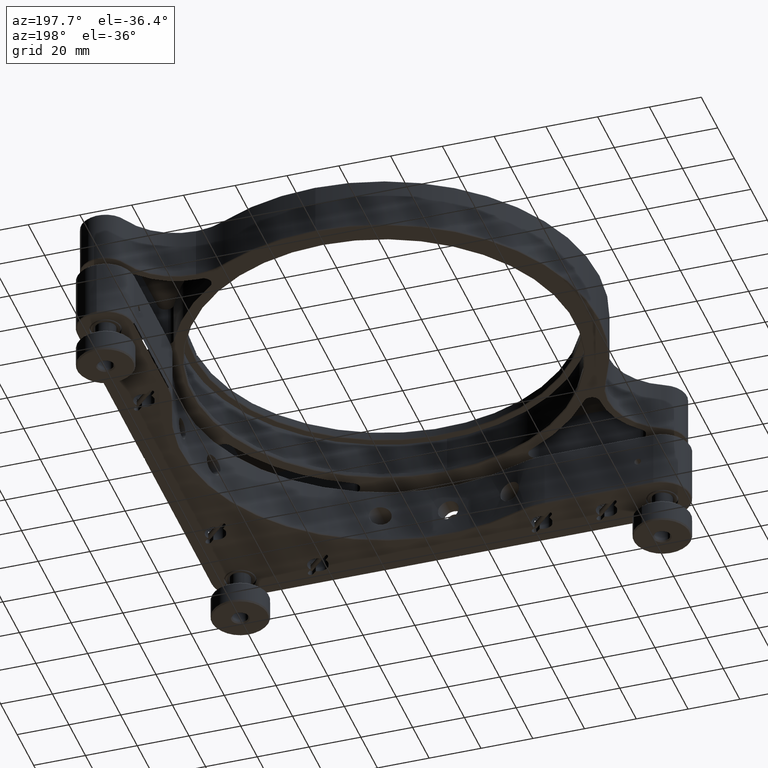
[diagram: clean part render]
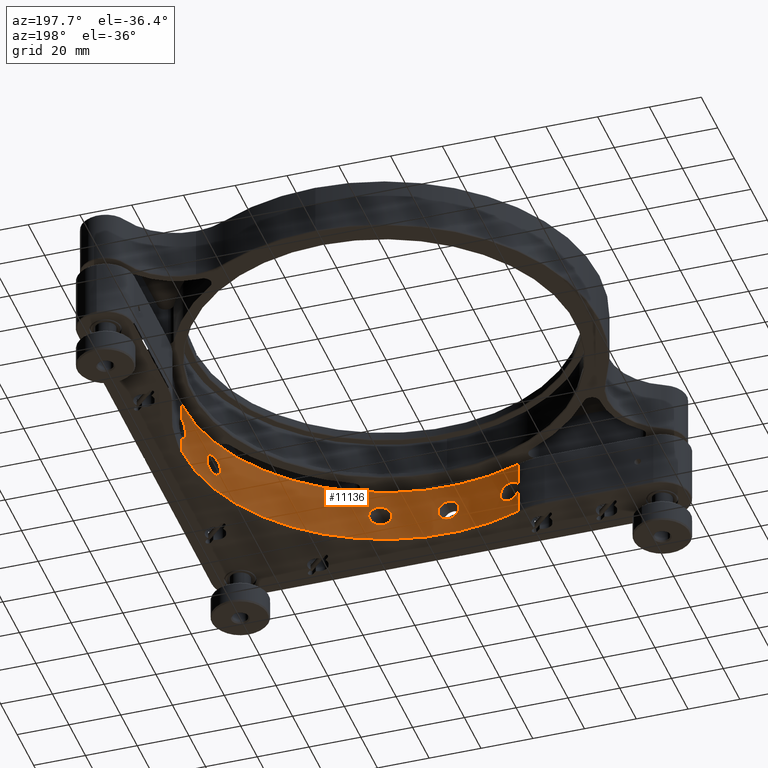
[diagram: same view with one face highlighted and labeled with its STEP entity id]
A machine part, auxiliary view. The second image highlights one B-rep face of the part: STEP entity #11136.
In plain terms, the highlighted cylindrical surface (partial cylindrical patch) has radius 78 mm, axis along (-0, -0, 1).
Its self-contained STEP definition (entity closure, byte-faithful):
#30 = CARTESIAN_POINT ( 'NONE',  ( -27.37100379551196738, -73.04006604625685384, -3.226725056732791863 ) ) ;
#40 = CARTESIAN_POINT ( 'NONE',  ( 74.65602845485361172, -22.59489988606503630, 3.206778632898348746 ) ) ;
#104 = CARTESIAN_POINT ( 'NONE',  ( 26.73848758430381878, -73.27425581765598395, 3.611485316196477058 ) ) ;
#110 = CARTESIAN_POINT ( 'NONE',  ( -28.04488079413580337, -72.78394630786631581, 2.600501206860420744 ) ) ;
#133 = CARTESIAN_POINT ( 'NONE',  ( -24.99999999999999289, -73.88504584826351618, -3.999999999999991562 ) ) ;
#146 = B_SPLINE_CURVE_WITH_KNOTS ( 'NONE', 3,
 ( #10572, #18296, #3316, #17197, #12477, #9824, #7940, #4917, #9457, #12940, #18590, #3419, #10963, #14550, #6326, #16995, #5285, #17100, #6995, #17657, #18493, #16051, #3880, #18693, #14084, #15954, #275, #15491, #19162, #14652, #4714, #10028, #16156, #8512 ),
 .UNSPECIFIED., .F., .F.,
 ( 4, 2, 2, 2, 2, 2, 2, 2, 2, 2, 2, 2, 2, 2, 2, 2, 4 ),
 ( 4.395466612126818234E-20, 0.0007817422773618290174, 0.001563484554723658469, 0.002345226832085487052, 0.003126969109447316070, 0.003908711386809145087, 0.004690453664170974105, 0.005472195941532803122, 0.006253938218894632139, 0.007035680496256461157, 0.007817422773618290174, 0.008599165050980118324, 0.009380907328341948209, 0.01016264960570377809, 0.01094439188306560624, 0.01172613416042743439, 0.01250787643778926428 ),
 .UNSPECIFIED. ) ;
#182 = CARTESIAN_POINT ( 'NONE',  ( 78.00000000000000000, 0.000000000000000000, -11.00000000000000000 ) ) ;
#275 = CARTESIAN_POINT ( 'NONE',  ( 77.96212707202002434, -2.440020888850041647, -3.180282821266665394 ) ) ;
#332 = CARTESIAN_POINT ( 'NONE',  ( 74.22539789437419699, -23.97579238673047186, 3.900471655276448235 ) ) ;
#370 = ORIENTED_EDGE ( 'NONE', *, *, #10732, .T. ) ;
#449 = CARTESIAN_POINT ( 'NONE',  ( 7.155299446963895485E-15, -78.00000000000000000, 3.999999999999994227 ) ) ;
#462 = CARTESIAN_POINT ( 'NONE',  ( 24.74383873331732531, -73.97172146162401418, 3.999999999999998224 ) ) ;
#496 = CARTESIAN_POINT ( 'NONE',  ( -22.59489988606504696, -74.65602845485361172, 3.206778632898351411 ) ) ;
#655 = CARTESIAN_POINT ( 'NONE',  ( 23.74441657809158102, -74.29849114166836443, 3.806599779784482163 ) ) ;
#661 = CARTESIAN_POINT ( 'NONE',  ( 72.74651131137534321, -28.14197555900623726, 2.489396057008533614 ) ) ;
#696 = CARTESIAN_POINT ( 'NONE',  ( -23.74426298476861419, -74.29853247817516149, -3.806385302535674420 ) ) ;
#760 = ORIENTED_EDGE ( 'NONE', *, *, #18735, .T. ) ;
#852 = CARTESIAN_POINT ( 'NONE',  ( -1.038872687293755481, -77.99350259600736024, -3.871570120535715365 ) ) ;
#870 = CARTESIAN_POINT ( 'NONE',  ( 73.79765663695931721, -25.25827023535409310, 3.999999999999999112 ) ) ;
#954 = B_SPLINE_CURVE_WITH_KNOTS ( 'NONE', 3,
 ( #8115, #462, #9832, #18969, #655, #5197, #12759, #18868, #5097, #11237, #9737, #15869, #2083, #12854, #8216, #11334, #3691, #9931, #15963, #2181, #14463, #12952, #19070, #5295, #11441, #3786, #13563, #16578, #6271, #4388, #15063, #8829, #1075, #7421 ),
 .UNSPECIFIED., .F., .F.,
 ( 4, 2, 2, 2, 2, 2, 2, 2, 2, 2, 2, 2, 2, 2, 2, 2, 4 ),
 ( 0.000000000000000000, 0.0008000817148278636893, 0.001600163429655727379, 0.002400245144483590960, 0.003200326859311454757, 0.004000408574139318121, 0.004800490288967181919, 0.005600572003795045717, 0.006400653718622909515, 0.007200735433450773312, 0.008000817148278636243, 0.008800898863106500908, 0.009600980577934363838, 0.01040106229276222850, 0.01120114400759009143, 0.01200122572241795610, 0.01280130743724581903 ),
 .UNSPECIFIED. ) ;
#1075 = CARTESIAN_POINT ( 'NONE',  ( 24.74681311060530575, -73.97071504102366646, -3.999999999999992450 ) ) ;
#1425 = ORIENTED_EDGE ( 'NONE', *, *, #14524, .T. ) ;
#1439 = CARTESIAN_POINT ( 'NONE',  ( -26.24349648675795876, -73.45279411502990285, 3.806088811528975047 ) ) ;
#1500 = CARTESIAN_POINT ( 'NONE',  ( 7.155299446963895485E-15, -78.00000000000000000, 3.999999999999994227 ) ) ;
#1524 = CARTESIAN_POINT ( 'NONE',  ( 27.59838257292567576, -72.95456708676626079, -3.052121627771050782 ) ) ;
#1558 = CARTESIAN_POINT ( 'NONE',  ( 75.11213550657788574, -21.02784402710324230, -0.5418916867587196817 ) ) ;
#1600 = CARTESIAN_POINT ( 'NONE',  ( 73.88504584826351618, -24.99999999999998224, 3.999999999999998224 ) ) ;
#1622 = CARTESIAN_POINT ( 'NONE',  ( 27.97727728600435881, -72.81010737200010396, 2.683933090833489299 ) ) ;
#1681 = CARTESIAN_POINT ( 'NONE',  ( -1.035576530980339527, -77.99354430105370284, 3.872406130247565859 ) ) ;
#1697 = CARTESIAN_POINT ( 'NONE',  ( 1.294182821932950755, -77.98963379206509217, 3.793803601313259666 ) ) ;
#1801 = CARTESIAN_POINT ( 'NONE',  ( 1.288927170577639503, -77.98972126068761668, -3.795592560333966414 ) ) ;
#1845 = CARTESIAN_POINT ( 'NONE',  ( -26.24400230785020938, -73.45261133346669169, -3.805886250388128111 ) ) ;
#1853 = CARTESIAN_POINT ( 'NONE',  ( 74.29853247817517570, -23.74426298476860353, -3.806385302535675308 ) ) ;
#1893 = CARTESIAN_POINT ( 'NONE',  ( 3.473315906907515682, -77.92276364577965353, 2.001070837446798034 ) ) ;
#2018 = CARTESIAN_POINT ( 'NONE',  ( -22.01723765412725697, -74.82833316180936833, 2.678010543228571905 ) ) ;
#2070 = CARTESIAN_POINT ( 'NONE',  ( -3.595964814120648168, -77.91712968579540188, -1.771362540339814551 ) ) ;
#2083 = CARTESIAN_POINT ( 'NONE',  ( 21.42285956289949311, -75.00048500386762385, 1.809568649512607319 ) ) ;
#2165 = CARTESIAN_POINT ( 'NONE',  ( -1.774081866758450809, -77.98019828597287528, 3.594632870111592382 ) ) ;
#2181 = CARTESIAN_POINT ( 'NONE',  ( 21.13342176601295819, -75.08249837524934378, -1.059061465847109362 ) ) ;
#2188 = CARTESIAN_POINT ( 'NONE',  ( 72.49436141480457252, -28.78506956844345410, -1.320853124984288529 ) ) ;
#2224 = CARTESIAN_POINT ( 'NONE',  ( -23.97579238673048607, -74.22539789437421121, 3.900471655276450456 ) ) ;
#2262 = LINE ( 'NONE', #5074, #9951 ) ;
#2377 = CARTESIAN_POINT ( 'NONE',  ( -3.795060588815405644, -77.90768565280973235, 1.290500745165017893 ) ) ;
#2399 = CARTESIAN_POINT ( 'NONE',  ( 72.57865478690735017, -28.57186707354512833, 1.820078764585681741 ) ) ;
#2400 = LINE ( 'NONE', #14769, #17798 ) ;
#2596 = AXIS2_PLACEMENT_3D ( 'NONE', #3502, #9643, #15875 ) ;
#2738 = EDGE_CURVE ( 'NONE', #5035, #3203, #7978, .T. ) ;
#2849 = CARTESIAN_POINT ( 'NONE',  ( 28.86226829308759534, -72.46359727300362863, -1.074935172876776646 ) ) ;
#2945 = VERTEX_POINT ( 'NONE', #9013 ) ;
#2952 = CARTESIAN_POINT ( 'NONE',  ( 28.97326224857740939, -72.41928881743221780, 0.5340880885660398425 ) ) ;
#3021 = CARTESIAN_POINT ( 'NONE',  ( 3.596047641995421706, -77.91712599941870110, 1.771246890564260434 ) ) ;
#3050 = CARTESIAN_POINT ( 'NONE',  ( 28.97154074426632420, -72.41997851193785607, -0.5472349680986610121 ) ) ;
#3119 = ORIENTED_EDGE ( 'NONE', *, *, #16559, .T. ) ;
#3143 = CARTESIAN_POINT ( 'NONE',  ( 26.25952512777345760, -73.44726336037290082, -3.805068704595564899 ) ) ;
#3149 = CARTESIAN_POINT ( 'NONE',  ( -27.79308834379566662, -72.88046665065765239, 2.869244339740403049 ) ) ;
#3169 = CARTESIAN_POINT ( 'NONE',  ( -25.36021007313602027, -73.76316392039825587, -3.999999999999991562 ) ) ;
#3195 = CARTESIAN_POINT ( 'NONE',  ( -0.5242454980882038651, -77.99865728363330675, 3.974055189202895466 ) ) ;
#3203 = VERTEX_POINT ( 'NONE', #9701 ) ;
#3213 = CARTESIAN_POINT ( 'NONE',  ( 1.775288987563180765, -77.98016566542831640, 3.593912068006213545 ) ) ;
#3313 = CARTESIAN_POINT ( 'NONE',  ( 1.036150386370847443, -77.99354383681649949, -3.872401020321700749 ) ) ;
#3316 = CARTESIAN_POINT ( 'NONE',  ( 77.99865728363330675, -0.5242454980881883220, 3.974055189202895466 ) ) ;
#3365 = CARTESIAN_POINT ( 'NONE',  ( -26.74740889898077612, -73.27078245194927320, -3.602707014048464274 ) ) ;
#3375 = CARTESIAN_POINT ( 'NONE',  ( 74.05445350753896605, -24.49505236323060942, -3.976217016987804165 ) ) ;
#3419 = CARTESIAN_POINT ( 'NONE',  ( 77.92285252867712586, -3.471378386552571804, 2.004674185169120992 ) ) ;
#3502 = CARTESIAN_POINT ( 'NONE',  ( 0.000000000000000000, 0.000000000000000000, 10.70000000000000462 ) ) ;
#3533 = CARTESIAN_POINT ( 'NONE',  ( -24.74701612107662285, -73.97064634969750330, -3.999999999999993339 ) ) ;
#3626 = CARTESIAN_POINT ( 'NONE',  ( -22.02454828541328169, -74.82618024345492813, -2.685998030945659032 ) ) ;
#3691 = CARTESIAN_POINT ( 'NONE',  ( 21.00028168044048016, -75.11982540865209046, 0.2710983563199680368 ) ) ;
#3698 = CARTESIAN_POINT ( 'NONE',  ( 73.27548003730198900, -26.73514416379994785, -3.613173254544084223 ) ) ;
#3728 = CARTESIAN_POINT ( 'NONE',  ( -23.04123831673606304, -74.51948522766215888, -3.497323358634151447 ) ) ;
#3757 = B_SPLINE_CURVE_WITH_KNOTS ( 'NONE', 3,
 ( #9384, #16826, #13812, #1439, #6449, #10986, #12409, #12501, #7960, #9284, #3149, #110, #15414, #12214, #15615, #11084 ),
 .UNSPECIFIED., .F., .F.,
 ( 4, 2, 2, 2, 2, 2, 2, 4 ),
 ( 0.000000000000000000, 0.001140319662262617674, 0.001710479493393931173, 0.002280639324525244455, 0.002850799155656558170, 0.003420958986787871452, 0.003991118817919184734, 0.004561278649050498450 ),
 .UNSPECIFIED. ) ;
#3770 = CARTESIAN_POINT ( 'NONE',  ( -4.000092791689472627, -77.89736361178441371, -0.2595156173372857311 ) ) ;
#3786 = CARTESIAN_POINT ( 'NONE',  ( 22.39580021586580116, -74.71590994770340899, -3.047660092900295936 ) ) ;
#3793 = CARTESIAN_POINT ( 'NONE',  ( 73.53559052328191115, -26.01128317337281715, 3.878395087894263238 ) ) ;
#3880 = CARTESIAN_POINT ( 'NONE',  ( 77.92288107885735826, -3.470678907385455148, -2.005573438225844551 ) ) ;
#3899 = CARTESIAN_POINT ( 'NONE',  ( 73.53415876494440795, -26.01534311378234321, -3.877414656770550749 ) ) ;
#3981 = CARTESIAN_POINT ( 'NONE',  ( 7.428752638015980296E-15, -78.00000000000000000, -3.999999999999994227 ) ) ;
#4003 = CARTESIAN_POINT ( 'NONE',  ( 72.81155763262226799, -27.97350903102410413, 2.688179948572599898 ) ) ;
#4190 = CARTESIAN_POINT ( 'NONE',  ( -28.55975704067207488, -72.58333333333335702, -1.824316258598137397 ) ) ;
#4331 = VERTEX_POINT ( 'NONE', #12728 ) ;
#4349 = CARTESIAN_POINT ( 'NONE',  ( 28.57034378668507202, -72.57925430393584065, -1.822944101926049720 ) ) ;
#4388 = CARTESIAN_POINT ( 'NONE',  ( 23.74367490658177715, -74.29872578192474464, -3.806306101009116816 ) ) ;
#4511 = CARTESIAN_POINT ( 'NONE',  ( 3.010950149097227690, -77.94208277222656989, -2.646161307683056574 ) ) ;
#4613 = CARTESIAN_POINT ( 'NONE',  ( 3.871726509399969984, -77.90386601962131863, -1.038117540620143053 ) ) ;
#4622 = VECTOR ( 'NONE', #12182, 1000.000000000000000 ) ;
#4639 = CARTESIAN_POINT ( 'NONE',  ( 28.99934265684701984, -72.40882629869744846, -0.2800717362526508603 ) ) ;
#4663 = CARTESIAN_POINT ( 'NONE',  ( -25.72441926667101697, -73.63687478941228903, -3.950248637414554231 ) ) ;
#4674 = CARTESIAN_POINT ( 'NONE',  ( 74.65336722089197963, -22.60369669649288582, -3.213370268778871885 ) ) ;
#4710 = CARTESIAN_POINT ( 'NONE',  ( 2.008475715716599552, -77.97444240052298881, 3.469150255005847949 ) ) ;
#4714 = CARTESIAN_POINT ( 'NONE',  ( 77.99350259600736024, -1.038872687293739716, -3.871570120535715365 ) ) ;
#4731 = CARTESIAN_POINT ( 'NONE',  ( 26.01179128937046414, -73.53541852626720754, -3.878397041267346523 ) ) ;
#4767 = CARTESIAN_POINT ( 'NONE',  ( 74.96352919145894589, -21.55212286694406743, -2.045295803821513214 ) ) ;
#4808 = CARTESIAN_POINT ( 'NONE',  ( 0.5204713056522372039, -77.99868971635731896, -3.974695825513904879 ) ) ;
#4846 = ORIENTED_EDGE ( 'NONE', *, *, #7144, .T. ) ;
#4864 = CARTESIAN_POINT ( 'NONE',  ( -28.38686435614924264, -72.65136235373402940, -2.161678789963065839 ) ) ;
#4875 = CARTESIAN_POINT ( 'NONE',  ( 75.12005645565098177, -20.99945519364452906, 0.2601063408321588333 ) ) ;
#4917 = CARTESIAN_POINT ( 'NONE',  ( 77.96217235479909391, -2.438644126671286827, 3.181407457272440453 ) ) ;
#5007 = EDGE_CURVE ( 'NONE', #4331, #7932, #12079, .T. ) ;
#5035 = VERTEX_POINT ( 'NONE', #14903 ) ;
#5063 = CARTESIAN_POINT ( 'NONE',  ( 74.71705837135044703, -22.39194913412558918, 3.044122593229686924 ) ) ;
#5074 = CARTESIAN_POINT ( 'NONE',  ( -28.55975704067207488, -72.58333333333335702, -11.00000000000000000 ) ) ;
#5097 = CARTESIAN_POINT ( 'NONE',  ( 22.39650519350028546, -74.71569399255065491, 3.048039807265448875 ) ) ;
#5197 = CARTESIAN_POINT ( 'NONE',  ( 23.26535865561886851, -74.44989047129581650, 3.613545491506943375 ) ) ;
#5230 = CARTESIAN_POINT ( 'NONE',  ( -23.26305980556527331, -74.45060192349109229, 3.612299662698405633 ) ) ;
#5282 = CARTESIAN_POINT ( 'NONE',  ( -1.772997806453679770, -77.98022342668966189, -3.595177367259070778 ) ) ;
#5285 = CARTESIAN_POINT ( 'NONE',  ( 77.89737316753505070, -3.999906699720869874, 0.2623682360653084578 ) ) ;
#5295 = CARTESIAN_POINT ( 'NONE',  ( 21.84767440612765910, -74.87792176232946417, -2.476371690956477689 ) ) ;
#5302 = CARTESIAN_POINT ( 'NONE',  ( 73.44768320963692076, -26.25837496757414868, 3.805622994203181175 ) ) ;
#5377 = CARTESIAN_POINT ( 'NONE',  ( -2.642377946310555892, -77.95545351511327681, -3.014558976656167566 ) ) ;
#5397 = CARTESIAN_POINT ( 'NONE',  ( 73.70967095938428315, -25.51381958184962784, -3.975079306951272873 ) ) ;
#5432 = CARTESIAN_POINT ( 'NONE',  ( -22.60369669649290358, -74.65336722089199384, -3.213370268778872774 ) ) ;
#5459 = LINE ( 'NONE', #12918, #11717 ) ;
#5481 = CARTESIAN_POINT ( 'NONE',  ( -0.5262440096884074547, -77.99864595552975288, -3.973836798472851761 ) ) ;
#5502 = CARTESIAN_POINT ( 'NONE',  ( 72.46251476229139143, -28.86498495242403806, -1.065468717979328295 ) ) ;
#5581 = CARTESIAN_POINT ( 'NONE',  ( -3.470678907385470247, -77.92288107885735826, -2.005573438225844107 ) ) ;
#5867 = ORIENTED_EDGE ( 'NONE', *, *, #5007, .T. ) ;
#5960 = CARTESIAN_POINT ( 'NONE',  ( 25.51356117900124687, -73.70976635008814526, 3.975215644761352696 ) ) ;
#5986 = CARTESIAN_POINT ( 'NONE',  ( 0.000000000000000000, 0.000000000000000000, -11.00000000000000000 ) ) ;
#6014 = EDGE_CURVE ( 'NONE', #14330, #2945, #16329, .T. ) ;
#6131 = CARTESIAN_POINT ( 'NONE',  ( 3.470642313775975651, -77.92288375048309490, -2.005753991971203298 ) ) ;
#6155 = CARTESIAN_POINT ( 'NONE',  ( 28.57565325442850224, -72.57716459937317666, 1.812961036383299307 ) ) ;
#6221 = CARTESIAN_POINT ( 'NONE',  ( 3.593593112039601412, -77.91723943821379805, -1.776139531026822427 ) ) ;
#6255 = B_SPLINE_CURVE_WITH_KNOTS ( 'NONE', 3,
 ( #10910, #4864, #7693, #17142, #13832, #30, #9305, #18440, #3365, #15636, #1845, #4663, #3169, #133 ),
 .UNSPECIFIED., .F., .F.,
 ( 4, 2, 2, 2, 2, 2, 4 ),
 ( 0.008349818174027462750, 0.009488050238870889691, 0.01005716627129260750, 0.01062628230371432531, 0.01119539833613604311, 0.01176451436855776092, 0.01290274643340120868 ),
 .UNSPECIFIED. ) ;
#6271 = CARTESIAN_POINT ( 'NONE',  ( 23.26596119168572230, -74.44969980271285692, -3.613783098940983596 ) ) ;
#6281 = VERTEX_POINT ( 'NONE', #8759 ) ;
#6285 = CARTESIAN_POINT ( 'NONE',  ( 74.51948522766218730, -23.04123831673605238, -3.497323358634151891 ) ) ;
#6326 = CARTESIAN_POINT ( 'NONE',  ( 77.90386092381194771, -3.871833715960093958, 1.038368804854522098 ) ) ;
#6421 = CARTESIAN_POINT ( 'NONE',  ( 2.002534085389724439, -77.97459740336702794, -3.472633676535794134 ) ) ;
#6449 = CARTESIAN_POINT ( 'NONE',  ( -26.41653496202212281, -73.39072244967150027, 3.745183777772093325 ) ) ;
#6481 = CARTESIAN_POINT ( 'NONE',  ( 75.00129449863017328, -21.42002858607879290, 1.804400766283678959 ) ) ;
#6571 = CARTESIAN_POINT ( 'NONE',  ( 74.87876080722392658, -21.84479734756104463, 2.472723570418458916 ) ) ;
#6746 = EDGE_CURVE ( 'NONE', #9610, #12378, #2400, .T. ) ;
#6838 = CARTESIAN_POINT ( 'NONE',  ( -21.84479734756105884, -74.87876080722391237, 2.472723570418454031 ) ) ;
#6911 = CARTESIAN_POINT ( 'NONE',  ( 72.40871840294883555, -28.99961205625789873, 0.2747791489853340097 ) ) ;
#6974 = VERTEX_POINT ( 'NONE', #16754 ) ;
#6995 = CARTESIAN_POINT ( 'NONE',  ( 77.89871217753025689, -3.974073061221874426, -0.5245602025211166808 ) ) ;
#7012 = CARTESIAN_POINT ( 'NONE',  ( 73.88504584826351618, -24.99999999999998224, -3.999999999999991562 ) ) ;
#7048 = CARTESIAN_POINT ( 'NONE',  ( -21.21671753476270084, -75.05906071340406527, -1.325550393028378959 ) ) ;
#7097 = CARTESIAN_POINT ( 'NONE',  ( -2.438644126671302370, -77.96217235479909391, 3.181407457272440453 ) ) ;
#7144 = EDGE_CURVE ( 'NONE', #16613, #4331, #6255, .T. ) ;
#7335 = DIRECTION ( 'NONE',  ( -0.000000000000000000, -0.000000000000000000, -1.000000000000000000 ) ) ;
#7367 = VERTEX_POINT ( 'NONE', #1600 ) ;
#7421 = CARTESIAN_POINT ( 'NONE',  ( 25.00000000000000355, -73.88504584826348776, -3.999999999999991562 ) ) ;
#7476 = CARTESIAN_POINT ( 'NONE',  ( 27.40251993058068436, -73.02845941409070463, 3.208658098849050955 ) ) ;
#7668 = CARTESIAN_POINT ( 'NONE',  ( 27.39521821724340356, -73.03119897990728759, -3.214087621261744854 ) ) ;
#7693 = CARTESIAN_POINT ( 'NONE',  ( -28.17198448263816957, -72.73522515431915281, -2.464934160912187533 ) ) ;
#7702 = CARTESIAN_POINT ( 'NONE',  ( 75.11974709711478226, -21.00056181142756273, -0.2766012147249255482 ) ) ;
#7766 = CARTESIAN_POINT ( 'NONE',  ( 26.96697085322626464, -73.19041239084945971, 3.492651496314132853 ) ) ;
#7797 = CARTESIAN_POINT ( 'NONE',  ( 74.87605416438476880, -21.85408935834876587, -2.484821499529769717 ) ) ;
#7840 = CARTESIAN_POINT ( 'NONE',  ( 1.043205646281679888, -77.99345270447794576, 3.870573030558371652 ) ) ;
#7895 = FACE_BOUND ( 'NONE', #16471, .T. ) ;
#7932 = VERTEX_POINT ( 'NONE', #10649 ) ;
#7937 = CARTESIAN_POINT ( 'NONE',  ( 1.770313845460135260, -77.98027920224045317, -3.596365529765846336 ) ) ;
#7940 = CARTESIAN_POINT ( 'NONE',  ( 77.97455966665144445, -2.003833388222011180, 3.471741686529078663 ) ) ;
#7960 = CARTESIAN_POINT ( 'NONE',  ( -27.37032204770689958, -73.04032375761811124, 3.227299997954521604 ) ) ;
#7978 = B_SPLINE_CURVE_WITH_KNOTS ( 'NONE', 3,
 ( #449, #18671, #3195, #1681, #9916, #2165, #19053, #7097, #11322, #11735, #9728, #15857, #19158, #2377, #10025, #8402, #16153, #3770, #12937, #19260, #8509, #2070, #5581, #8302, #19363, #5377, #11633, #13042, #5282, #14649, #852, #5481, #17756, #3981 ),
 .UNSPECIFIED., .F., .F.,
 ( 4, 2, 2, 2, 2, 2, 2, 2, 2, 2, 2, 2, 2, 2, 2, 2, 4 ),
 ( 2.103006628280939085E-19, 0.0007817422773618292343, 0.001563484554723658252, 0.002345226832085487052, 0.003126969109447316070, 0.003908711386809145087, 0.004690453664170974105, 0.005472195941532803122, 0.006253938218894632139, 0.007035680496256461157, 0.007817422773618290174, 0.008599165050980118324, 0.009380907328341948209, 0.01016264960570377809, 0.01094439188306560624, 0.01172613416042743439, 0.01250787643778926428 ),
 .UNSPECIFIED. ) ;
#7990 = CARTESIAN_POINT ( 'NONE',  ( 74.71519357198454259, -22.39816569506053412, -3.049320674793187802 ) ) ;
#8026 = CARTESIAN_POINT ( 'NONE',  ( 3.179908169683757890, -77.93528952980065583, -2.440612869518465899 ) ) ;
#8115 = CARTESIAN_POINT ( 'NONE',  ( 25.00000000000000711, -73.88504584826350197, 3.999999999999998224 ) ) ;
#8151 = CARTESIAN_POINT ( 'NONE',  ( -22.39194913412558563, -74.71705837135041861, 3.044122593229683815 ) ) ;
#8216 = CARTESIAN_POINT ( 'NONE',  ( 21.13557142552287260, -75.08189379694994159, 1.067109936542361304 ) ) ;
#8302 = CARTESIAN_POINT ( 'NONE',  ( -3.181061825837070867, -77.93524140828793634, -2.439012618763904072 ) ) ;
#8353 = CARTESIAN_POINT ( 'NONE',  ( -24.48795281423327808, -74.05830390741742519, 3.999999999999998224 ) ) ;
#8402 = CARTESIAN_POINT ( 'NONE',  ( -3.974526928854731800, -77.89868919855126705, 0.5219595681171552704 ) ) ;
#8457 = CARTESIAN_POINT ( 'NONE',  ( -21.42479527212265822, -74.99993230447621784, -1.813345309088488788 ) ) ;
#8509 = CARTESIAN_POINT ( 'NONE',  ( -3.796352683970450226, -77.90762329654502594, -1.287009903855917736 ) ) ;
#8512 = CARTESIAN_POINT ( 'NONE',  ( 78.00000000000000000, 2.263880807538067539E-14, -3.999999999999994227 ) ) ;
#8563 = CARTESIAN_POINT ( 'NONE',  ( -24.99999999999999289, -73.88504584826351618, -3.999999999999991562 ) ) ;
#8626 = CARTESIAN_POINT ( 'NONE',  ( 72.41926469414674727, -28.97332399187356344, -0.5348165358874826802 ) ) ;
#8759 = CARTESIAN_POINT ( 'NONE',  ( 78.00000000000000000, 2.210371870212918411E-14, 3.999999999999994227 ) ) ;
#8829 = CARTESIAN_POINT ( 'NONE',  ( 24.48947517775965110, -74.05629659403138021, -3.975484024393787674 ) ) ;
#8983 = CARTESIAN_POINT ( 'NONE',  ( 28.44789049615797083, -72.62742724300487396, 2.044920480682894226 ) ) ;
#9012 = FACE_BOUND ( 'NONE', #10851, .T. ) ;
#9013 = CARTESIAN_POINT ( 'NONE',  ( 25.00000000000000711, -73.88504584826350197, 3.999999999999998224 ) ) ;
#9159 = CARTESIAN_POINT ( 'NONE',  ( 3.999781293421629691, -77.89737960709692288, -0.2671534340271403130 ) ) ;
#9162 = EDGE_CURVE ( 'NONE', #7932, #9610, #3757, .T. ) ;
#9187 = CARTESIAN_POINT ( 'NONE',  ( 26.95956139314268896, -73.19314213164075511, -3.496791199352249357 ) ) ;
#9251 = AXIS2_PLACEMENT_3D ( 'NONE', #5986, #12142, #13739 ) ;
#9280 = CARTESIAN_POINT ( 'NONE',  ( 28.86626673872807913, -72.46200357922833746, 1.060209643100572308 ) ) ;
#9284 = CARTESIAN_POINT ( 'NONE',  ( -27.65674242214645417, -72.93235236990450687, 2.995932507419028390 ) ) ;
#9305 = CARTESIAN_POINT ( 'NONE',  ( -27.22205891709224446, -73.09573881722749888, -3.330987645164114053 ) ) ;
#9358 = CARTESIAN_POINT ( 'NONE',  ( 3.014860964798489640, -77.94193142846940248, 2.641731027349986771 ) ) ;
#9384 = CARTESIAN_POINT ( 'NONE',  ( -24.99999999999999289, -73.88504584826351618, 3.999999999999998224 ) ) ;
#9457 = CARTESIAN_POINT ( 'NONE',  ( 77.95537715058931383, -2.644474704055007397, 3.012446681657699354 ) ) ;
#9550 = CARTESIAN_POINT ( 'NONE',  ( 2.641935715111841887, -77.95546333227829905, -3.014658545149683011 ) ) ;
#9610 = VERTEX_POINT ( 'NONE', #13447 ) ;
#9643 = DIRECTION ( 'NONE',  ( 0.000000000000000000, 0.000000000000000000, 1.000000000000000000 ) ) ;
#9654 = EDGE_CURVE ( 'NONE', #14444, #7367, #16248, .T. ) ;
#9679 = CARTESIAN_POINT ( 'NONE',  ( -23.99328243118324622, -74.21854264774493970, -3.879664111582092012 ) ) ;
#9701 = CARTESIAN_POINT ( 'NONE',  ( 7.428752638015980296E-15, -78.00000000000000000, -3.999999999999994227 ) ) ;
#9721 = ORIENTED_EDGE ( 'NONE', *, *, #15107, .T. ) ;
#9728 = CARTESIAN_POINT ( 'NONE',  ( -3.178973246191502788, -77.93532923654449007, 2.441990088289993643 ) ) ;
#9737 = CARTESIAN_POINT ( 'NONE',  ( 21.85206910095081057, -74.87664053077628523, 2.481988425346016047 ) ) ;
#9771 = CARTESIAN_POINT ( 'NONE',  ( -21.02784402710325651, -75.11213550657791416, -0.5418916867587202368 ) ) ;
#9824 = CARTESIAN_POINT ( 'NONE',  ( 77.98019828597287528, -1.774081866758434600, 3.594632870111593270 ) ) ;
#9832 = CARTESIAN_POINT ( 'NONE',  ( 24.49111189018545076, -74.05575104872842473, 3.975616616368059297 ) ) ;
#9836 = CARTESIAN_POINT ( 'NONE',  ( 73.88504584826351618, -24.99999999999998224, 3.999999999999998224 ) ) ;
#9838 = EDGE_CURVE ( 'NONE', #6974, #18275, #5459, .T. ) ;
#9916 = CARTESIAN_POINT ( 'NONE',  ( -1.289650025219132079, -77.98971402692833976, 3.795465024644563368 ) ) ;
#9931 = CARTESIAN_POINT ( 'NONE',  ( 20.99972270542378538, -75.11998167185296893, -0.2627213754481366736 ) ) ;
#9938 = CARTESIAN_POINT ( 'NONE',  ( 72.46370974712081647, -28.86198626848741711, 1.076104579194006483 ) ) ;
#9947 = VERTEX_POINT ( 'NONE', #10506 ) ;
#9951 = VECTOR ( 'NONE', #11520, 1000.000000000000000 ) ;
#10025 = CARTESIAN_POINT ( 'NONE',  ( -3.871833715960109945, -77.90386092381194771, 1.038368804854522542 ) ) ;
#10028 = CARTESIAN_POINT ( 'NONE',  ( 77.99864595552975288, -0.5262440096883920226, -3.973836798472851761 ) ) ;
#10151 = CARTESIAN_POINT ( 'NONE',  ( 72.74459379685502824, -28.14693070726938728, -2.483180130910042749 ) ) ;
#10498 = CARTESIAN_POINT ( 'NONE',  ( 28.77994394578587745, -72.49639664067579758, -1.335104385650924597 ) ) ;
#10506 = CARTESIAN_POINT ( 'NONE',  ( 78.00000000000000000, 0.000000000000000000, 10.70000000000000462 ) ) ;
#10507 = ORIENTED_EDGE ( 'NONE', *, *, #6014, .T. ) ;
#10572 = CARTESIAN_POINT ( 'NONE',  ( 78.00000000000000000, 2.210371870212918411E-14, 3.999999999999994227 ) ) ;
#10594 = B_SPLINE_CURVE_WITH_KNOTS ( 'NONE', 3,
 ( #9836, #870, #12958, #3793, #5302, #19282, #17569, #11447, #19177, #4003, #661, #13266, #2399, #16282, #9938, #11549, #6911, #11339, #8626, #5502, #2188, #19381, #17476, #10151, #14668, #11756, #16069, #17875, #3698, #13059, #3899, #5397, #14767, #7012 ),
 .UNSPECIFIED., .F., .F.,
 ( 4, 2, 2, 2, 2, 2, 2, 2, 2, 2, 2, 2, 2, 2, 2, 2, 4 ),
 ( 0.000000000000000000, 0.0008064216520875753256, 0.001612843304175150651, 0.002419264956262726085, 0.003225686608350301302, 0.004032108260437876519, 0.004838529912525452170, 0.005644951564613026954, 0.006451373216700602604, 0.007257794868788178255, 0.008064216520875753039, 0.008870638172963327822, 0.009677059825050904340, 0.01048348147713847912, 0.01128990312922605391, 0.01209632478131363043, 0.01290274643340120521 ),
 .UNSPECIFIED. ) ;
#10603 = VERTEX_POINT ( 'NONE', #16606 ) ;
#10649 = CARTESIAN_POINT ( 'NONE',  ( -24.99999999999999289, -73.88504584826351618, 3.999999999999998224 ) ) ;
#10703 = EDGE_CURVE ( 'NONE', #6281, #9947, #18490, .T. ) ;
#10732 = EDGE_CURVE ( 'NONE', #3203, #5035, #17171, .T. ) ;
#10851 = EDGE_LOOP ( 'NONE', ( #12770, #370 ) ) ;
#10857 = CARTESIAN_POINT ( 'NONE',  ( 3.973714216947563660, -77.89873042796479297, -0.5268296819300352096 ) ) ;
#10910 = CARTESIAN_POINT ( 'NONE',  ( -28.55975704067207488, -72.58333333333335702, -1.824316258598137397 ) ) ;
#10963 = CARTESIAN_POINT ( 'NONE',  ( 77.91714599270930819, -3.595598559437067632, 1.771876983716809795 ) ) ;
#10986 = CARTESIAN_POINT ( 'NONE',  ( -26.75004240604167904, -73.26982115686801933, 3.601433659665842946 ) ) ;
#11084 = CARTESIAN_POINT ( 'NONE',  ( -28.55975704067207488, -72.58333333333335702, 1.824316258598141172 ) ) ;
#11110 = CARTESIAN_POINT ( 'NONE',  ( 74.44855720911462527, -23.26959996608205117, -3.615405958588697732 ) ) ;
#11136 = ADVANCED_FACE ( 'NONE', ( #16944, #7895, #9012, #14037 ), #15151, .F. ) ;
#11176 = CARTESIAN_POINT ( 'NONE',  ( -21.00056181142758049, -75.11974709711478226, -0.2766012147249259923 ) ) ;
#11237 = CARTESIAN_POINT ( 'NONE',  ( 22.02093770999001521, -74.82724554628276792, 2.682148345335553685 ) ) ;
#11257 = ORIENTED_EDGE ( 'NONE', *, *, #10703, .F. ) ;
#11274 = CARTESIAN_POINT ( 'NONE',  ( -21.85408935834878008, -74.87605416438475459, -2.484821499529772382 ) ) ;
#11322 = CARTESIAN_POINT ( 'NONE',  ( -2.644474704055022052, -77.95537715058931383, 3.012446681657699354 ) ) ;
#11334 = CARTESIAN_POINT ( 'NONE',  ( 21.02740293661020843, -75.11225919489632474, 0.5394482327800310673 ) ) ;
#11339 = CARTESIAN_POINT ( 'NONE',  ( 72.40841091673939900, -29.00037980240273328, -0.2633659389687172947 ) ) ;
#11374 = CARTESIAN_POINT ( 'NONE',  ( -21.02644221362453081, -75.11252716067266988, 0.5309641998081552350 ) ) ;
#11441 = CARTESIAN_POINT ( 'NONE',  ( 22.01685330292555065, -74.82845205708694891, -2.677858163024214644 ) ) ;
#11447 = CARTESIAN_POINT ( 'NONE',  ( 73.03188582951041496, -27.39336444194073295, 3.215229633219239602 ) ) ;
#11520 = DIRECTION ( 'NONE',  ( -0.000000000000000000, -0.000000000000000000, 1.000000000000000000 ) ) ;
#11549 = CARTESIAN_POINT ( 'NONE',  ( 72.41995958227050778, -28.97158842348195051, 0.5471968547166602415 ) ) ;
#11582 = CARTESIAN_POINT ( 'NONE',  ( -21.13548269788659439, -75.08191856841457934, -1.066384402953993060 ) ) ;
#11633 = CARTESIAN_POINT ( 'NONE',  ( -2.440020888850056302, -77.96212707202002434, -3.180282821266664506 ) ) ;
#11717 = VECTOR ( 'NONE', #14725, 1000.000000000000000 ) ;
#11735 = CARTESIAN_POINT ( 'NONE',  ( -3.013410097127667608, -77.94198761089903371, 2.643376828366775122 ) ) ;
#11756 = CARTESIAN_POINT ( 'NONE',  ( 72.95376154001071711, -27.60053178642730742, -3.050630994946790242 ) ) ;
#12017 = CARTESIAN_POINT ( 'NONE',  ( 27.97017516896064748, -72.81283458619574844, -2.691671950977912342 ) ) ;
#12079 = B_SPLINE_CURVE_WITH_KNOTS ( 'NONE', 3,
 ( #8563, #3533, #13196, #9679, #696, #14697, #3728, #5432, #18904, #3626, #11274, #19006, #8457, #7048, #11582, #9771, #11176, #12794, #11374, #14398, #15810, #12890, #17713, #6838, #2018, #8151, #496, #14503, #5230, #2224, #8353, #19113 ),
 .UNSPECIFIED., .F., .F.,
 ( 4, 2, 2, 2, 2, 2, 2, 2, 2, 2, 2, 2, 2, 2, 2, 4 ),
 ( 0.01290274643340120868, 0.01370215318061430466, 0.01450155992782740239, 0.01530096667504049837, 0.01610037342225359436, 0.01689978016946669034, 0.01769918691667978633, 0.01849859366389288232, 0.01929800041110597830, 0.02009740715831907429, 0.02089681390553217027, 0.02169622065274526279, 0.02249562739995836225, 0.02329503414717145476, 0.02409444089438455075, 0.02569325438881074272 ),
 .UNSPECIFIED. ) ;
#12117 = CARTESIAN_POINT ( 'NONE',  ( 25.25815618206523894, -73.79769522842516949, 3.999999999999998224 ) ) ;
#12142 = DIRECTION ( 'NONE',  ( -0.000000000000000000, -0.000000000000000000, 1.000000000000000000 ) ) ;
#12182 = DIRECTION ( 'NONE',  ( -0.000000000000000000, -0.000000000000000000, 1.000000000000000000 ) ) ;
#12208 = CARTESIAN_POINT ( 'NONE',  ( 26.01818712217685814, -73.53315849529799664, 3.876774366811380546 ) ) ;
#12214 = CARTESIAN_POINT ( 'NONE',  ( -28.37543298956789783, -72.65568101031951187, 2.154275530396135618 ) ) ;
#12353 = CARTESIAN_POINT ( 'NONE',  ( 73.88504584826351618, -24.99999999999998224, -3.999999999999991562 ) ) ;
#12378 = VERTEX_POINT ( 'NONE', #16553 ) ;
#12382 = CARTESIAN_POINT ( 'NONE',  ( 3.794495514598793307, -77.90771410403802122, -1.292434477358247014 ) ) ;
#12409 = CARTESIAN_POINT ( 'NONE',  ( -26.91091467001117721, -73.21085991776963908, 3.518692988926328979 ) ) ;
#12437 = CARTESIAN_POINT ( 'NONE',  ( 74.52252915529720667, -23.03138584217388640, 3.491775201250787664 ) ) ;
#12477 = CARTESIAN_POINT ( 'NONE',  ( 77.98971402692833976, -1.289650025219116314, 3.795465024644563368 ) ) ;
#12501 = CARTESIAN_POINT ( 'NONE',  ( -27.22105338308170630, -73.09611201008802084, 3.331623792669954565 ) ) ;
#12535 = CARTESIAN_POINT ( 'NONE',  ( 74.82833316180938255, -22.01723765412724632, 2.678010543228574125 ) ) ;
#12574 = CARTESIAN_POINT ( 'NONE',  ( 4.000215992421781941, -77.89735728547752558, 0.2605635555696759198 ) ) ;
#12634 = CARTESIAN_POINT ( 'NONE',  ( 73.88504584826351618, -24.99999999999998224, -3.999999999999991562 ) ) ;
#12645 = CARTESIAN_POINT ( 'NONE',  ( 25.00000000000000355, -73.88504584826348776, -3.999999999999991562 ) ) ;
#12728 = CARTESIAN_POINT ( 'NONE',  ( -24.99999999999999289, -73.88504584826351618, -3.999999999999991562 ) ) ;
#12729 = CARTESIAN_POINT ( 'NONE',  ( 74.99993230447621784, -21.42479527212264401, -1.813345309088485235 ) ) ;
#12759 = CARTESIAN_POINT ( 'NONE',  ( 23.03720436989739184, -74.52072570668667595, 3.494883021535693413 ) ) ;
#12770 = ORIENTED_EDGE ( 'NONE', *, *, #2738, .T. ) ;
#12794 = CARTESIAN_POINT ( 'NONE',  ( -20.99945519364454327, -75.12005645565096756, 0.2601063408321587223 ) ) ;
#12833 = ORIENTED_EDGE ( 'NONE', *, *, #15190, .T. ) ;
#12854 = CARTESIAN_POINT ( 'NONE',  ( 21.21509604521978432, -75.05951879981103048, 1.320974813207124621 ) ) ;
#12890 = CARTESIAN_POINT ( 'NONE',  ( -21.42002858607880000, -75.00129449863015907, 1.804400766283676738 ) ) ;
#12918 = CARTESIAN_POINT ( 'NONE',  ( 78.00000000000000000, 0.000000000000000000, -11.00000000000000000 ) ) ;
#12937 = CARTESIAN_POINT ( 'NONE',  ( -3.974073061221889525, -77.89871217753025689, -0.5245602025211165698 ) ) ;
#12940 = CARTESIAN_POINT ( 'NONE',  ( 77.94198761089903371, -3.013410097127652509, 2.643376828366775122 ) ) ;
#12952 = CARTESIAN_POINT ( 'NONE',  ( 21.42001768455125088, -75.00129663569731520, -1.804092950068598489 ) ) ;
#12958 = CARTESIAN_POINT ( 'NONE',  ( 73.71026475055948879, -25.51209117919595926, 3.975223860204486481 ) ) ;
#13042 = CARTESIAN_POINT ( 'NONE',  ( -2.006794043150275098, -77.97448132049481728, -3.469968073289010579 ) ) ;
#13059 = CARTESIAN_POINT ( 'NONE',  ( 73.44723782220397368, -26.25961089667580595, -3.805144757495733998 ) ) ;
#13060 = DIRECTION ( 'NONE',  ( -0.000000000000000000, -0.000000000000000000, 1.000000000000000000 ) ) ;
#13196 = CARTESIAN_POINT ( 'NONE',  ( -24.49505236323062363, -74.05445350753898026, -3.976217016987805941 ) ) ;
#13266 = CARTESIAN_POINT ( 'NONE',  ( 72.63022600161149001, -28.44074484423013871, 2.056788287341680732 ) ) ;
#13447 = CARTESIAN_POINT ( 'NONE',  ( -28.55975704067207488, -72.58333333333335702, 1.824316258598141172 ) ) ;
#13470 = ORIENTED_EDGE ( 'NONE', *, *, #9838, .F. ) ;
#13563 = CARTESIAN_POINT ( 'NONE',  ( 22.59948685668774715, -74.65463576104080801, -3.210070543919473440 ) ) ;
#13617 = CARTESIAN_POINT ( 'NONE',  ( 26.26529293888970074, -73.44520182259405772, 3.803182752468930783 ) ) ;
#13739 = DIRECTION ( 'NONE',  ( 1.000000000000000000, 0.000000000000000000, 0.000000000000000000 ) ) ;
#13808 = CARTESIAN_POINT ( 'NONE',  ( 28.78591266044475461, -72.49402742645136755, 1.318707413656774463 ) ) ;
#13812 = CARTESIAN_POINT ( 'NONE',  ( -25.72158961942553645, -73.63787145261372302, 3.950910102297815474 ) ) ;
#13832 = CARTESIAN_POINT ( 'NONE',  ( -27.65541960861490267, -72.93285174108396518, -2.997025240511474120 ) ) ;
#13843 = CARTESIAN_POINT ( 'NONE',  ( 74.96492786494796690, -21.54724069073846238, 2.036693100584532345 ) ) ;
#13887 = CARTESIAN_POINT ( 'NONE',  ( 0.2610232504343941717, -78.00000000000000000, -3.999999999999994671 ) ) ;
#13945 = CARTESIAN_POINT ( 'NONE',  ( 74.05830390741741098, -24.48795281423326387, 3.999999999999998224 ) ) ;
#14037 = FACE_BOUND ( 'NONE', #15512, .T. ) ;
#14043 = CARTESIAN_POINT ( 'NONE',  ( 75.06066801426244695, -21.21103293928340250, 1.309880171108322333 ) ) ;
#14080 = CARTESIAN_POINT ( 'NONE',  ( 3.183631161174377500, -77.93513655736296641, 2.435713553613453097 ) ) ;
#14084 = CARTESIAN_POINT ( 'NONE',  ( 77.94190312522226805, -3.015730620695554975, -2.641040677135772619 ) ) ;
#14142 = CARTESIAN_POINT ( 'NONE',  ( 75.11252716067265567, -21.02644221362451660, 0.5309641998081582326 ) ) ;
#14178 = CARTESIAN_POINT ( 'NONE',  ( 3.974421066302287198, -77.89869411836544089, 0.5214078875130262469 ) ) ;
#14201 = AXIS2_PLACEMENT_3D ( 'NONE', #19800, #7335, #19597 ) ;
#14269 = ORIENTED_EDGE ( 'NONE', *, *, #9162, .T. ) ;
#14330 = VERTEX_POINT ( 'NONE', #12645 ) ;
#14398 = CARTESIAN_POINT ( 'NONE',  ( -21.13206220569989213, -75.08288057580173813, 1.053632612710827088 ) ) ;
#14444 = VERTEX_POINT ( 'NONE', #12353 ) ;
#14463 = CARTESIAN_POINT ( 'NONE',  ( 21.21232344932960601, -75.06030234766824094, -1.313214033931456193 ) ) ;
#14464 = ORIENTED_EDGE ( 'NONE', *, *, #17158, .T. ) ;
#14503 = CARTESIAN_POINT ( 'NONE',  ( -23.03138584217391482, -74.52252915529723509, 3.491775201250789884 ) ) ;
#14524 = EDGE_CURVE ( 'NONE', #10603, #16613, #2262, .T. ) ;
#14550 = CARTESIAN_POINT ( 'NONE',  ( 77.90768565280973235, -3.795060588815390545, 1.290500745165017671 ) ) ;
#14649 = CARTESIAN_POINT ( 'NONE',  ( -1.288253468533590684, -77.98973759347403245, -3.795948435444374880 ) ) ;
#14652 = CARTESIAN_POINT ( 'NONE',  ( 77.98973759347403245, -1.288253468533575141, -3.795948435444374880 ) ) ;
#14668 = CARTESIAN_POINT ( 'NONE',  ( 72.81005172401599168, -27.97743815427803682, -2.684022555232766560 ) ) ;
#14697 = CARTESIAN_POINT ( 'NONE',  ( -23.26959996608206183, -74.44855720911459684, -3.615405958588695068 ) ) ;
#14725 = DIRECTION ( 'NONE',  ( -0.000000000000000000, -0.000000000000000000, 1.000000000000000000 ) ) ;
#14767 = CARTESIAN_POINT ( 'NONE',  ( 73.79869419057914115, -25.25520384748331537, -3.999999999999992450 ) ) ;
#14769 = CARTESIAN_POINT ( 'NONE',  ( -28.55975704067207488, -72.58333333333335702, -11.00000000000000000 ) ) ;
#14903 = CARTESIAN_POINT ( 'NONE',  ( 7.155299446963895485E-15, -78.00000000000000000, 3.999999999999994227 ) ) ;
#15063 = CARTESIAN_POINT ( 'NONE',  ( 23.98846807716249785, -74.22009740640473296, -3.878390386670019119 ) ) ;
#15107 = EDGE_CURVE ( 'NONE', #12378, #9947, #17668, .T. ) ;
#15119 = CARTESIAN_POINT ( 'NONE',  ( 27.60455758102310497, -72.95223218391701892, 3.046958595216469057 ) ) ;
#15151 = CYLINDRICAL_SURFACE ( 'NONE', #9251, 78.00000000000000000 ) ;
#15190 = EDGE_CURVE ( 'NONE', #7367, #14444, #10594, .T. ) ;
#15290 = CARTESIAN_POINT ( 'NONE',  ( 0.5257657383747117441, -77.99865712417374652, 3.974063914140169906 ) ) ;
#15315 = CARTESIAN_POINT ( 'NONE',  ( 29.00063453752907350, -72.40830889410995042, 0.2609696561924710889 ) ) ;
#15410 = CARTESIAN_POINT ( 'NONE',  ( 28.14933472096229039, -72.74366375421703879, 2.480189400258415944 ) ) ;
#15414 = CARTESIAN_POINT ( 'NONE',  ( -28.16143080334249049, -72.73889602906629648, 2.457601717855054435 ) ) ;
#15487 = CARTESIAN_POINT ( 'NONE',  ( 7.428752638015980296E-15, -78.00000000000000000, -3.999999999999994227 ) ) ;
#15491 = CARTESIAN_POINT ( 'NONE',  ( 77.97448132049481728, -2.006794043150259998, -3.469968073289011912 ) ) ;
#15512 = EDGE_LOOP ( 'NONE', ( #3119, #10507 ) ) ;
#15542 = CARTESIAN_POINT ( 'NONE',  ( 74.82618024345494234, -22.02454828541328169, -2.685998030945662585 ) ) ;
#15588 = CARTESIAN_POINT ( 'NONE',  ( 2.645989248474492683, -77.95532568294639475, 3.011124433643795228 ) ) ;
#15615 = CARTESIAN_POINT ( 'NONE',  ( -28.47349105782596723, -72.61727687653831254, 1.992645592045490632 ) ) ;
#15636 = CARTESIAN_POINT ( 'NONE',  ( -26.41398812150187325, -73.39163900232311732, -3.746141118746442622 ) ) ;
#15644 = CARTESIAN_POINT ( 'NONE',  ( 75.08288057580175234, -21.13206220569987082, 1.053632612710830641 ) ) ;
#15682 = CARTESIAN_POINT ( 'NONE',  ( 3.796646843751461997, -77.90760909819155700, 1.286214186932505887 ) ) ;
#15810 = CARTESIAN_POINT ( 'NONE',  ( -21.21103293928341671, -75.06066801426244695, 1.309880171108320113 ) ) ;
#15857 = CARTESIAN_POINT ( 'NONE',  ( -3.471378386552586015, -77.92285252867712586, 2.004674185169120992 ) ) ;
#15869 = CARTESIAN_POINT ( 'NONE',  ( 21.55309720082746239, -74.96324580899297985, 2.046606113006787631 ) ) ;
#15875 = DIRECTION ( 'NONE',  ( 1.000000000000000000, 0.000000000000000000, 0.000000000000000000 ) ) ;
#15926 = EDGE_LOOP ( 'NONE', ( #13470, #14464, #1425, #4846, #5867, #14269, #17484, #9721, #11257, #760 ) ) ;
#15954 = CARTESIAN_POINT ( 'NONE',  ( 77.95545351511327681, -2.642377946310542125, -3.014558976656168010 ) ) ;
#15963 = CARTESIAN_POINT ( 'NONE',  ( 21.02659460353410026, -75.11248496214287229, -0.5329990462658509287 ) ) ;
#16051 = CARTESIAN_POINT ( 'NONE',  ( 77.91712968579540188, -3.595964814120632180, -1.771362540339814551 ) ) ;
#16069 = CARTESIAN_POINT ( 'NONE',  ( 73.03012696881967258, -27.39805701205474264, -3.211788647848638156 ) ) ;
#16153 = CARTESIAN_POINT ( 'NONE',  ( -3.999906699720885417, -77.89737316753505070, 0.2623682360653086798 ) ) ;
#16156 = CARTESIAN_POINT ( 'NONE',  ( 78.00000000000001421, -0.2610827784789849226, -3.999999999999994671 ) ) ;
#16248 = B_SPLINE_CURVE_WITH_KNOTS ( 'NONE', 3,
 ( #12634, #18836, #3375, #18745, #1853, #11110, #6285, #4674, #7990, #15542, #7797, #4767, #12729, #16951, #17341, #1558, #7702, #4875, #14142, #15644, #14043, #6481, #13843, #6571, #12535, #5063, #40, #12437, #18547, #332, #13945, #17247 ),
 .UNSPECIFIED., .F., .F.,
 ( 4, 2, 2, 2, 2, 2, 2, 2, 2, 2, 2, 2, 2, 2, 2, 4 ),
 ( 0.01290274643340120521, 0.01370215318061429946, 0.01450155992782739545, 0.01530096667504048970, 0.01610037342225358395, 0.01689978016946667994, 0.01769918691667977592, 0.01849859366389287191, 0.01929800041110596442, 0.02009740715831906041, 0.02089681390553215640, 0.02169622065274524891, 0.02249562739995834490, 0.02329503414717144089, 0.02409444089438453340, 0.02569325438881072537 ),
 .UNSPECIFIED. ) ;
#16282 = CARTESIAN_POINT ( 'NONE',  ( 72.49572942038882672, -28.78162494632937651, 1.330501358763261477 ) ) ;
#16329 = B_SPLINE_CURVE_WITH_KNOTS ( 'NONE', 3,
 ( #16628, #16922, #18413, #4731, #3143, #19740, #9187, #7668, #1524, #12017, #18127, #16822, #4349, #10498, #2849, #3050, #4639, #15315, #2952, #9280, #13808, #6155, #8983, #15410, #1622, #15119, #7476, #7766, #104, #13617, #12208, #5960, #12117, #18218 ),
 .UNSPECIFIED., .F., .F.,
 ( 4, 2, 2, 2, 2, 2, 2, 2, 2, 2, 2, 2, 2, 2, 2, 2, 4 ),
 ( 0.01280130743724581903, 0.01360761997432434652, 0.01441393251140287574, 0.01522024504848140322, 0.01602655758555993071, 0.01683287012263846166, 0.01763918265971698915, 0.01844549519679551663, 0.01925180773387404412, 0.02005812027095257161, 0.02086443280803110256, 0.02167074534510963005, 0.02247705788218815753, 0.02328337041926668849, 0.02408968295634521251, 0.02489599549342374346, 0.02570230803050227095 ),
 .UNSPECIFIED. ) ;
#16471 = EDGE_LOOP ( 'NONE', ( #12833, #17977 ) ) ;
#16553 = CARTESIAN_POINT ( 'NONE',  ( -28.55975704067207488, -72.58333333333335702, 10.70000000000000462 ) ) ;
#16559 = EDGE_CURVE ( 'NONE', #2945, #14330, #954, .T. ) ;
#16578 = CARTESIAN_POINT ( 'NONE',  ( 23.03328252174991064, -74.52193866957922808, -3.492712213867609439 ) ) ;
#16606 = CARTESIAN_POINT ( 'NONE',  ( -28.55975704067207488, -72.58333333333335702, -10.69999999999992113 ) ) ;
#16613 = VERTEX_POINT ( 'NONE', #4190 ) ;
#16628 = CARTESIAN_POINT ( 'NONE',  ( 25.00000000000000355, -73.88504584826348776, -3.999999999999991562 ) ) ;
#16754 = CARTESIAN_POINT ( 'NONE',  ( 78.00000000000000000, 0.000000000000000000, -10.69999999999992113 ) ) ;
#16822 = CARTESIAN_POINT ( 'NONE',  ( 28.44250603950921885, -72.62954007564020742, -2.054199999669094279 ) ) ;
#16826 = CARTESIAN_POINT ( 'NONE',  ( -25.36520674610991932, -73.76147322882574997, 3.999999999999997335 ) ) ;
#16922 = CARTESIAN_POINT ( 'NONE',  ( 25.25515864112303888, -73.79870948675976194, -3.999999999999993339 ) ) ;
#16944 = FACE_OUTER_BOUND ( 'NONE', #15926, .T. ) ;
#16951 = CARTESIAN_POINT ( 'NONE',  ( 75.05906071340405106, -21.21671753476268663, -1.325550393028374740 ) ) ;
#16993 = CARTESIAN_POINT ( 'NONE',  ( 3.873195379714603703, -77.90379275561291195, 1.032592149876045529 ) ) ;
#16995 = CARTESIAN_POINT ( 'NONE',  ( 77.89868919855126705, -3.974526928854717145, 0.5219595681171548263 ) ) ;
#17100 = CARTESIAN_POINT ( 'NONE',  ( 77.89736361178441371, -4.000092791689457528, -0.2595156173372861197 ) ) ;
#17142 = CARTESIAN_POINT ( 'NONE',  ( -27.79177809700165014, -72.88096796964143209, -2.870596027140396966 ) ) ;
#17158 = EDGE_CURVE ( 'NONE', #6974, #10603, #18376, .T. ) ;
#17171 = B_SPLINE_CURVE_WITH_KNOTS ( 'NONE', 3,
 ( #15487, #13887, #4808, #3313, #1801, #7937, #6421, #17195, #9550, #4511, #8026, #6131, #6221, #12382, #4613, #10857, #9159, #12574, #14178, #16993, #15682, #3021, #1893, #14080, #9358, #15588, #18291, #4710, #3213, #1697, #7840, #15290, #18690, #1500 ),
 .UNSPECIFIED., .F., .F.,
 ( 4, 2, 2, 2, 2, 2, 2, 2, 2, 2, 2, 2, 2, 2, 2, 2, 4 ),
 ( 0.01250787643778926428, 0.01328944047440523170, 0.01407100451102119912, 0.01485256854763716827, 0.01563413258425313396, 0.01641569662086910311, 0.01719726065748506880, 0.01797882469410103795, 0.01876038873071700364, 0.01954195276733296932, 0.02032351680394893501, 0.02110508084056490069, 0.02188664487718086984, 0.02266820891379683900, 0.02344977295041280121, 0.02423133698702877037, 0.02501290102364473605 ),
 .UNSPECIFIED. ) ;
#17195 = CARTESIAN_POINT ( 'NONE',  ( 2.440456721888528691, -77.96211999406455107, -3.180172700207849701 ) ) ;
#17197 = CARTESIAN_POINT ( 'NONE',  ( 77.99354430105371705, -1.035576530980324206, 3.872406130247564526 ) ) ;
#17247 = CARTESIAN_POINT ( 'NONE',  ( 73.88504584826351618, -24.99999999999998224, 3.999999999999998224 ) ) ;
#17341 = CARTESIAN_POINT ( 'NONE',  ( 75.08191856841457934, -21.13548269788657663, -1.066384402953992394 ) ) ;
#17476 = CARTESIAN_POINT ( 'NONE',  ( 72.62842797446498366, -28.44533502821184712, -2.049151771411253264 ) ) ;
#17484 = ORIENTED_EDGE ( 'NONE', *, *, #6746, .T. ) ;
#17569 = CARTESIAN_POINT ( 'NONE',  ( 73.19195939566314735, -26.96274917524587167, 3.494783343978427048 ) ) ;
#17657 = CARTESIAN_POINT ( 'NONE',  ( 77.90385663892008949, -3.871916372575654020, -1.037633705012990459 ) ) ;
#17668 = CIRCLE ( 'NONE', #2596, 78.00000000000000000 ) ;
#17713 = CARTESIAN_POINT ( 'NONE',  ( -21.54724069073847659, -74.96492786494793847, 2.036693100584527905 ) ) ;
#17756 = CARTESIAN_POINT ( 'NONE',  ( -0.2610827784790002437, -78.00000000000001421, -3.999999999999994671 ) ) ;
#17798 = VECTOR ( 'NONE', #13060, 1000.000000000000000 ) ;
#17875 = CARTESIAN_POINT ( 'NONE',  ( 73.19054374406887575, -26.96659562431388579, -3.492673102645565297 ) ) ;
#17977 = ORIENTED_EDGE ( 'NONE', *, *, #9654, .T. ) ;
#18127 = CARTESIAN_POINT ( 'NONE',  ( 28.14058495765774381, -72.74705299630628019, -2.491447690486770838 ) ) ;
#18218 = CARTESIAN_POINT ( 'NONE',  ( 25.00000000000000711, -73.88504584826350197, 3.999999999999998224 ) ) ;
#18275 = VERTEX_POINT ( 'NONE', #18712 ) ;
#18291 = CARTESIAN_POINT ( 'NONE',  ( 2.444840462788688384, -77.96198046153405414, 3.176748857549436700 ) ) ;
#18296 = CARTESIAN_POINT ( 'NONE',  ( 78.00000000000000000, -0.2643359395384069499, 3.999999999999994227 ) ) ;
#18376 = CIRCLE ( 'NONE', #14201, 78.00000000000000000 ) ;
#18413 = CARTESIAN_POINT ( 'NONE',  ( 25.50855011018946783, -73.71149798498879591, -3.975809604141468778 ) ) ;
#18440 = CARTESIAN_POINT ( 'NONE',  ( -26.91086405448526264, -73.21087979776633858, -3.518753058761190822 ) ) ;
#18490 = LINE ( 'NONE', #182, #4622 ) ;
#18493 = CARTESIAN_POINT ( 'NONE',  ( 77.90762329654502594, -3.796352683970434683, -1.287009903855917736 ) ) ;
#18547 = CARTESIAN_POINT ( 'NONE',  ( 74.45060192349107808, -23.26305980556524844, 3.612299662698402525 ) ) ;
#18590 = CARTESIAN_POINT ( 'NONE',  ( 77.93532923654449007, -3.178973246191488133, 2.441990088289993643 ) ) ;
#18671 = CARTESIAN_POINT ( 'NONE',  ( -0.2643359395384220489, -78.00000000000000000, 3.999999999999994227 ) ) ;
#18690 = CARTESIAN_POINT ( 'NONE',  ( 0.2642756697585024184, -78.00000000000001421, 3.999999999999994227 ) ) ;
#18693 = CARTESIAN_POINT ( 'NONE',  ( 77.93524140828793634, -3.181061825837056212, -2.439012618763904960 ) ) ;
#18712 = CARTESIAN_POINT ( 'NONE',  ( 78.00000000000000000, 2.263880807538067539E-14, -3.999999999999994227 ) ) ;
#18735 = EDGE_CURVE ( 'NONE', #6281, #18275, #146, .T. ) ;
#18745 = CARTESIAN_POINT ( 'NONE',  ( 74.21854264774491128, -23.99328243118322135, -3.879664111582091124 ) ) ;
#18836 = CARTESIAN_POINT ( 'NONE',  ( 73.97064634969750330, -24.74701612107660154, -3.999999999999990674 ) ) ;
#18868 = CARTESIAN_POINT ( 'NONE',  ( 22.60384532486322229, -74.65331554299052641, 3.213287536556374224 ) ) ;
#18904 = CARTESIAN_POINT ( 'NONE',  ( -22.39816569506055188, -74.71519357198457101, -3.049320674793185582 ) ) ;
#18969 = CARTESIAN_POINT ( 'NONE',  ( 23.99240517857199606, -74.21882051579675021, 3.879335930862897186 ) ) ;
#19006 = CARTESIAN_POINT ( 'NONE',  ( -21.55212286694409585, -74.96352919145896010, -2.045295803821517211 ) ) ;
#19053 = CARTESIAN_POINT ( 'NONE',  ( -2.003833388222027168, -77.97455966665147287, 3.471741686529079551 ) ) ;
#19070 = CARTESIAN_POINT ( 'NONE',  ( 21.54979101815414566, -74.96419512991238321, -2.040987844927895534 ) ) ;
#19113 = CARTESIAN_POINT ( 'NONE',  ( -24.99999999999999289, -73.88504584826351618, 3.999999999999998224 ) ) ;
#19158 = CARTESIAN_POINT ( 'NONE',  ( -3.595598559437082287, -77.91714599270930819, 1.771876983716810461 ) ) ;
#19162 = CARTESIAN_POINT ( 'NONE',  ( 77.98022342668966189, -1.772997806453662673, -3.595177367259070778 ) ) ;
#19177 = CARTESIAN_POINT ( 'NONE',  ( 72.95428721318155851, -27.59913240690869074, 3.051651704380228480 ) ) ;
#19260 = CARTESIAN_POINT ( 'NONE',  ( -3.871916372575670007, -77.90385663892008949, -1.037633705012990459 ) ) ;
#19282 = CARTESIAN_POINT ( 'NONE',  ( 73.27523436154871206, -26.73582716246147584, 3.612918210406393715 ) ) ;
#19363 = CARTESIAN_POINT ( 'NONE',  ( -3.015730620695570963, -77.94190312522226805, -2.641040677135772619 ) ) ;
#19381 = CARTESIAN_POINT ( 'NONE',  ( 72.57712848551105367, -28.57574299643067306, -1.812585622588495093 ) ) ;
#19597 = DIRECTION ( 'NONE',  ( 1.000000000000000000, 0.000000000000000000, 0.000000000000000000 ) ) ;
#19740 = CARTESIAN_POINT ( 'NONE',  ( 26.73225172150400297, -73.27653016459150592, -3.614450908164578813 ) ) ;
#19800 = CARTESIAN_POINT ( 'NONE',  ( 0.000000000000000000, 0.000000000000000000, -10.69999999999992113 ) ) ;